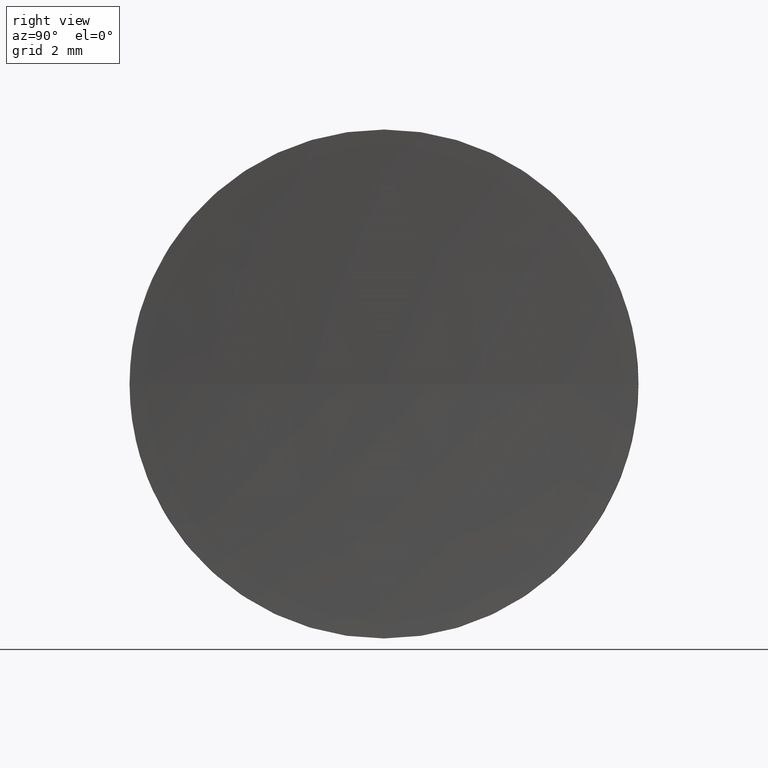
[diagram: clean part render]
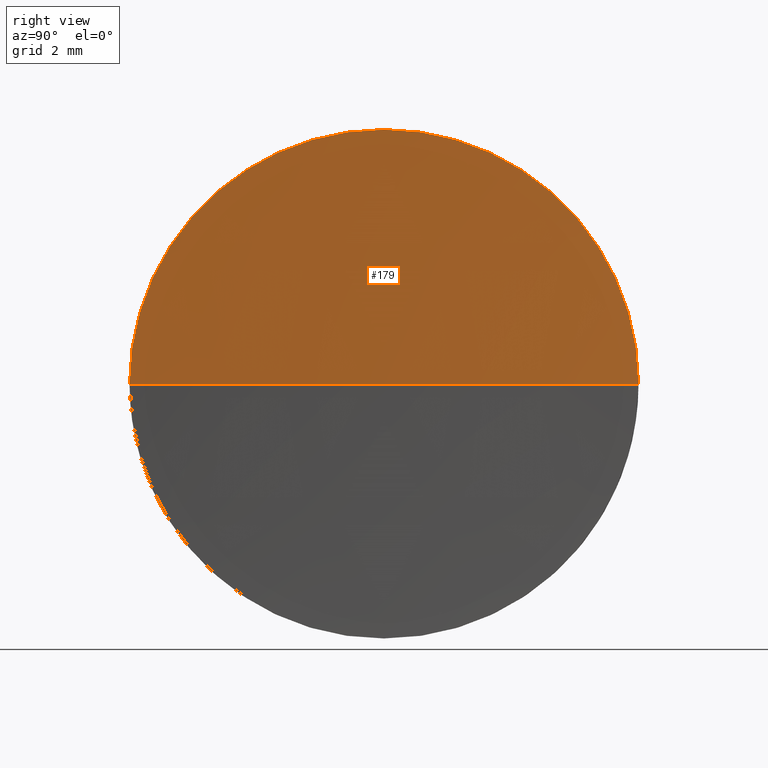
[diagram: same view with one face highlighted and labeled with its STEP entity id]
A machine part, right view. The second image highlights one B-rep face of the part: STEP entity #179.
In plain terms, the highlighted spherical surface has radius 100 mm.
Its self-contained STEP definition (entity closure, byte-faithful):
#6 = CIRCLE ( 'NONE', #61, 99.99999999999997200 ) ;
#9 = EDGE_LOOP ( 'NONE', ( #168, #89, #177, #27 ) ) ;
#14 = EDGE_CURVE ( 'NONE', #148, #83, #6, .T. ) ;
#27 = ORIENTED_EDGE ( 'NONE', *, *, #14, .T. ) ;
#28 = AXIS2_PLACEMENT_3D ( 'NONE', #96, #166, #151 ) ;
#29 = CIRCLE ( 'NONE', #56, 6.250000000000005300 ) ;
#30 = CIRCLE ( 'NONE', #176, 6.250000000000005300 ) ;
#33 = CARTESIAN_POINT ( 'NONE',  ( 60.74183151620172800, 34.68901056168621700, 0.0000000000000000000 ) ) ;
#46 = CARTESIAN_POINT ( 'NONE',  ( 160.5463279078974200, 34.68901056168621700, 0.0000000000000000000 ) ) ;
#56 = AXIS2_PLACEMENT_3D ( 'NONE', #33, #155, #144 ) ;
#59 = AXIS2_PLACEMENT_3D ( 'NONE', #102, #131, #175 ) ;
#60 = VERTEX_POINT ( 'NONE', #123 ) ;
#61 = AXIS2_PLACEMENT_3D ( 'NONE', #46, #154, #158 ) ;
#66 = SPHERICAL_SURFACE ( 'NONE', #28, 99.99999999999997200 ) ;
#75 = EDGE_CURVE ( 'NONE', #60, #95, #30, .T. ) ;
#83 = VERTEX_POINT ( 'NONE', #143 ) ;
#89 = ORIENTED_EDGE ( 'NONE', *, *, #75, .F. ) ;
#95 = VERTEX_POINT ( 'NONE', #169 ) ;
#96 = CARTESIAN_POINT ( 'NONE',  ( 160.5463279078974200, 34.68901056168621700, 0.0000000000000000000 ) ) ;
#101 = CARTESIAN_POINT ( 'NONE',  ( 60.74183151620172800, 34.68901056168621700, 0.0000000000000000000 ) ) ;
#102 = CARTESIAN_POINT ( 'NONE',  ( 160.5463279078974200, 34.68901056168621700, 0.0000000000000000000 ) ) ;
#111 = DIRECTION ( 'NONE',  ( 0.0000000000000000000, 0.0000000000000000000, 1.000000000000000000 ) ) ;
#116 = EDGE_CURVE ( 'NONE', #95, #83, #138, .T. ) ;
#123 = CARTESIAN_POINT ( 'NONE',  ( 60.74183151620172800, 34.68901056168621700, 6.250000000000004400 ) ) ;
#130 = DIRECTION ( 'NONE',  ( -1.000000000000000000, -0.0000000000000000000, -0.0000000000000000000 ) ) ;
#131 = DIRECTION ( 'NONE',  ( 0.0000000000000000000, -1.224646799147353200E-016, 1.000000000000000000 ) ) ;
#138 = CIRCLE ( 'NONE', #59, 99.99999999999997200 ) ;
#143 = CARTESIAN_POINT ( 'NONE',  ( 60.54632790789743500, 34.68901056168621000, 0.0000000000000000000 ) ) ;
#144 = DIRECTION ( 'NONE',  ( 0.0000000000000000000, 0.0000000000000000000, 1.000000000000000000 ) ) ;
#148 = VERTEX_POINT ( 'NONE', #171 ) ;
#151 = DIRECTION ( 'NONE',  ( 0.0000000000000000000, -1.000000000000000000, 0.0000000000000000000 ) ) ;
#154 = DIRECTION ( 'NONE',  ( 0.0000000000000000000, 0.0000000000000000000, -1.000000000000000000 ) ) ;
#155 = DIRECTION ( 'NONE',  ( -1.000000000000000000, -0.0000000000000000000, -0.0000000000000000000 ) ) ;
#158 = DIRECTION ( 'NONE',  ( -1.000000000000000000, 0.0000000000000000000, 0.0000000000000000000 ) ) ;
#159 = EDGE_CURVE ( 'NONE', #148, #60, #29, .T. ) ;
#166 = DIRECTION ( 'NONE',  ( 0.0000000000000000000, 0.0000000000000000000, 1.000000000000000000 ) ) ;
#168 = ORIENTED_EDGE ( 'NONE', *, *, #116, .F. ) ;
#169 = CARTESIAN_POINT ( 'NONE',  ( 60.74183151620172100, 40.93901056168618900, 7.654042494670921100E-016 ) ) ;
#171 = CARTESIAN_POINT ( 'NONE',  ( 60.74183151620172100, 28.43901056168624600, 0.0000000000000000000 ) ) ;
#174 = FACE_OUTER_BOUND ( 'NONE', #9, .T. ) ;
#175 = DIRECTION ( 'NONE',  ( 0.0000000000000000000, -1.000000000000000000, -1.224646799147353200E-016 ) ) ;
#176 = AXIS2_PLACEMENT_3D ( 'NONE', #101, #130, #111 ) ;
#177 = ORIENTED_EDGE ( 'NONE', *, *, #159, .F. ) ;
#179 = ADVANCED_FACE ( 'NONE', ( #174 ), #66, .F. ) ;